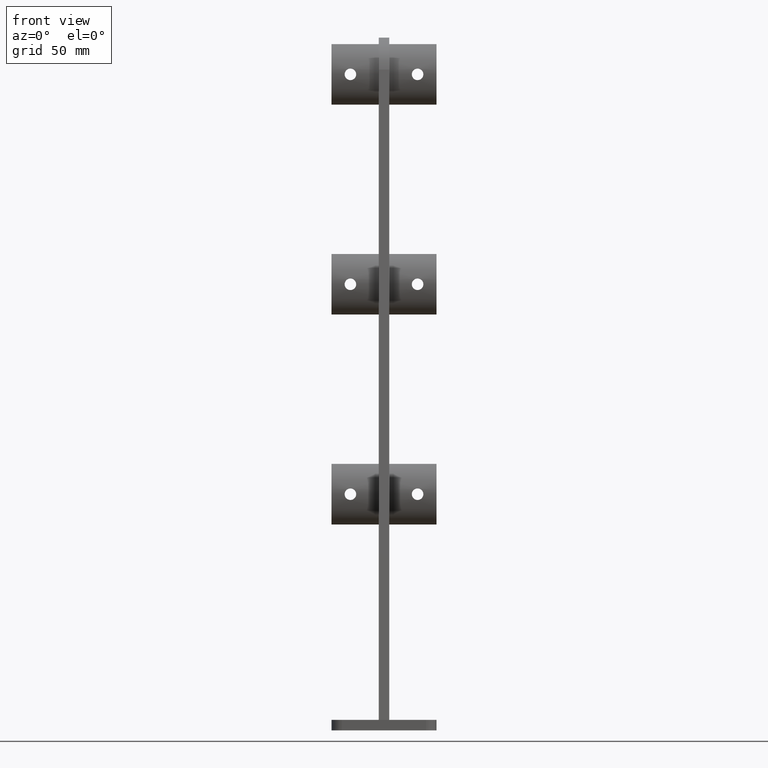
[diagram: clean part render]
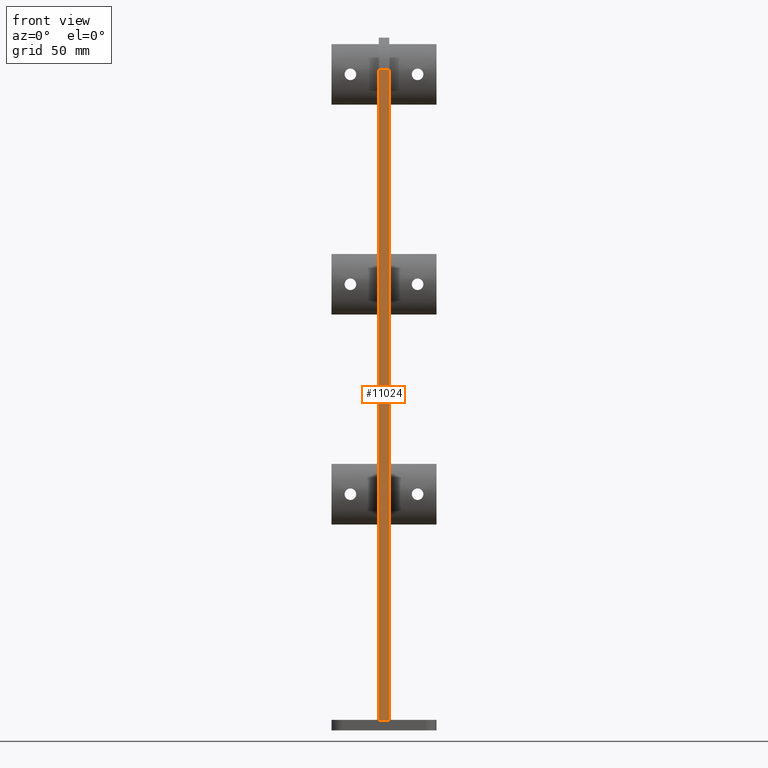
[diagram: same view with one face highlighted and labeled with its STEP entity id]
A machine part, front view. The second image highlights one B-rep face of the part: STEP entity #11024.
In plain terms, the highlighted planar face has unit normal (0, 0.9945, -0.1045).
Its self-contained STEP definition (entity closure, byte-faithful):
#313 = DIRECTION ( 'NONE',  ( -1.000000000000000000, 0.000000000000000000, 0.000000000000000000 ) ) ;
#378 = LINE ( 'NONE', #1122, #5122 ) ;
#664 = ORIENTED_EDGE ( 'NONE', *, *, #9208, .T. ) ;
#693 = VECTOR ( 'NONE', #313, 1000.000000000000000 ) ;
#759 = ORIENTED_EDGE ( 'NONE', *, *, #2559, .F. ) ;
#788 = CARTESIAN_POINT ( 'NONE',  ( -2.500000000000000000, -14.47447882367166194, 5.000000000000002665 ) ) ;
#1122 = CARTESIAN_POINT ( 'NONE',  ( 2.500000000000000000, 18.08348125871821566, 314.7682981099094945 ) ) ;
#1143 = EDGE_CURVE ( 'NONE', #11457, #8419, #10501, .T. ) ;
#1312 = AXIS2_PLACEMENT_3D ( 'NONE', #2851, #10573, #9556 ) ;
#1531 = CARTESIAN_POINT ( 'NONE',  ( 2.500000000000000000, 18.08348125871813750, 314.7682981099094945 ) ) ;
#1682 = VERTEX_POINT ( 'NONE', #6091 ) ;
#2319 = DIRECTION ( 'NONE',  ( -1.000000000000000000, -0.000000000000000000, -0.000000000000000000 ) ) ;
#2374 = EDGE_LOOP ( 'NONE', ( #11327, #759, #9226, #664 ) ) ;
#2433 = LINE ( 'NONE', #1531, #11363 ) ;
#2559 = EDGE_CURVE ( 'NONE', #1682, #11457, #378, .T. ) ;
#2818 = CARTESIAN_POINT ( 'NONE',  ( -2.500000000000000000, 18.08348125871813750, 314.7682981099094945 ) ) ;
#2851 = CARTESIAN_POINT ( 'NONE',  ( 2.500000000000000000, 18.08348125871821566, 314.7682981099094945 ) ) ;
#3086 = VERTEX_POINT ( 'NONE', #2818 ) ;
#3853 = PLANE ( 'NONE',  #1312 ) ;
#5122 = VECTOR ( 'NONE', #9719, 1000.000000000000114 ) ;
#5267 = LINE ( 'NONE', #9393, #11969 ) ;
#5715 = DIRECTION ( 'NONE',  ( 0.000000000000000000, -0.1045284632676463377, -0.9945218953682740670 ) ) ;
#5965 = CARTESIAN_POINT ( 'NONE',  ( 0.000000000000000000, -14.47447882367166727, 5.000000000000000000 ) ) ;
#6023 = CARTESIAN_POINT ( 'NONE',  ( 2.500000000000000000, -14.47447882367166727, 5.000000000000000000 ) ) ;
#6091 = CARTESIAN_POINT ( 'NONE',  ( 2.500000000000000000, 18.08348125871813750, 314.7682981099094945 ) ) ;
#8419 = VERTEX_POINT ( 'NONE', #788 ) ;
#9208 = EDGE_CURVE ( 'NONE', #3086, #8419, #5267, .T. ) ;
#9226 = ORIENTED_EDGE ( 'NONE', *, *, #9392, .T. ) ;
#9392 = EDGE_CURVE ( 'NONE', #1682, #3086, #2433, .T. ) ;
#9393 = CARTESIAN_POINT ( 'NONE',  ( -2.500000000000000000, 18.08348125871821566, 314.7682981099094945 ) ) ;
#9556 = DIRECTION ( 'NONE',  ( 0.000000000000000000, 0.1045284632676463515, 0.9945218953682741780 ) ) ;
#9719 = DIRECTION ( 'NONE',  ( 0.000000000000000000, -0.1045284632676463377, -0.9945218953682740670 ) ) ;
#10143 = FACE_OUTER_BOUND ( 'NONE', #2374, .T. ) ;
#10501 = LINE ( 'NONE', #5965, #693 ) ;
#10573 = DIRECTION ( 'NONE',  ( 0.000000000000000000, 0.9945218953682741780, -0.1045284632676463515 ) ) ;
#11024 = ADVANCED_FACE ( 'NONE', ( #10143 ), #3853, .F. ) ;
#11327 = ORIENTED_EDGE ( 'NONE', *, *, #1143, .F. ) ;
#11363 = VECTOR ( 'NONE', #2319, 1000.000000000000000 ) ;
#11457 = VERTEX_POINT ( 'NONE', #6023 ) ;
#11969 = VECTOR ( 'NONE', #5715, 1000.000000000000114 ) ;